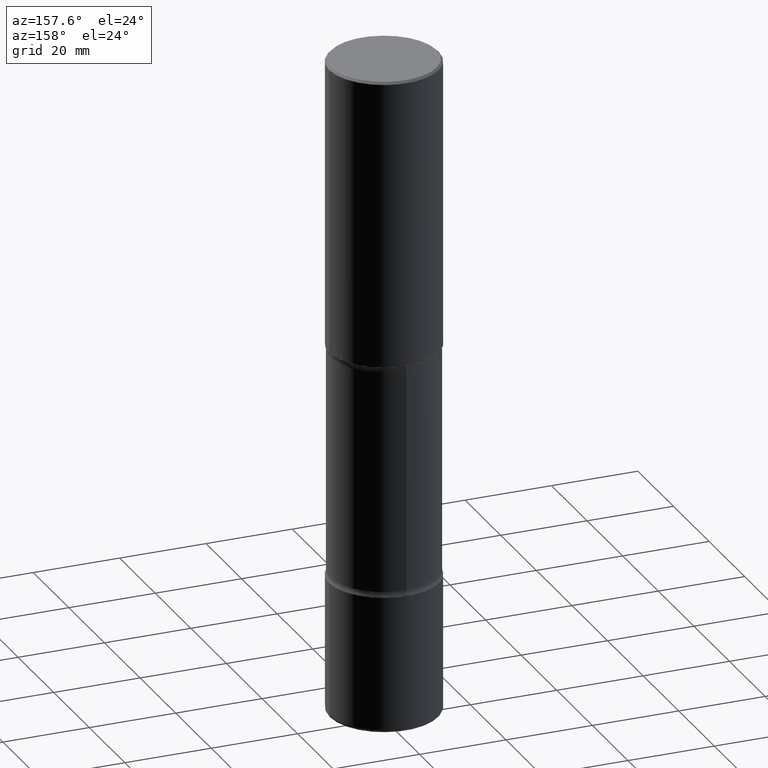
[diagram: clean part render]
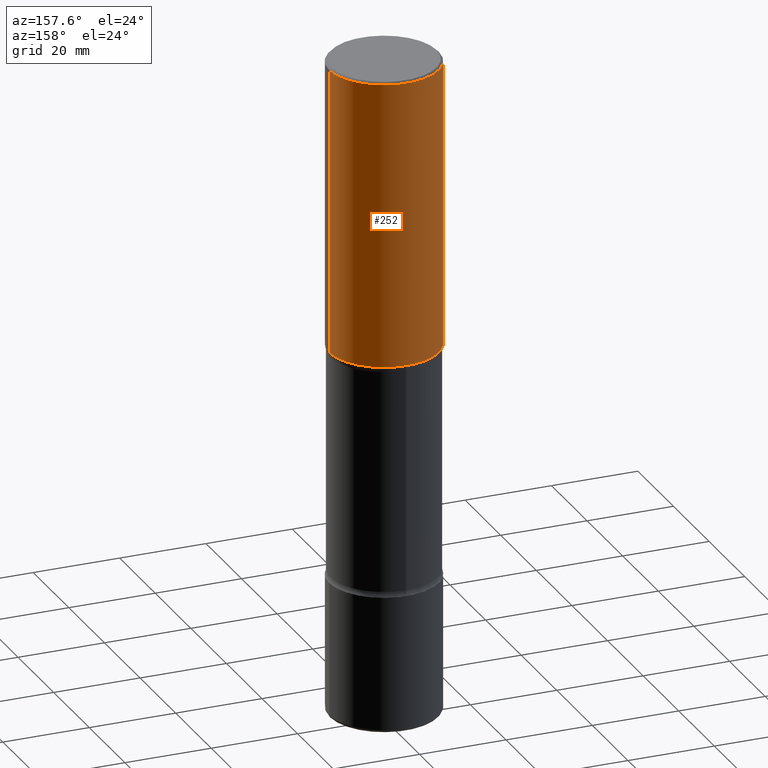
[diagram: same view with one face highlighted and labeled with its STEP entity id]
A machine part, auxiliary view. The second image highlights one B-rep face of the part: STEP entity #252.
In plain terms, the highlighted cylindrical surface (partial cylindrical patch) has radius 12.7 mm, axis along (-0, 0, 1).
Its self-contained STEP definition (entity closure, byte-faithful):
#10 = CARTESIAN_POINT ( 'NONE',  ( -0.5000000000000006661, 3.552713678800505663E-15, -2.459467545127455974E-29 ) ) ;
#20 = CARTESIAN_POINT ( 'NONE',  ( -0.5000000000000005551, 3.421651712066274396E-15, -0.02000000000000000042 ) ) ;
#55 = DIRECTION ( 'NONE',  ( -2.445468806185136597E-29, 3.491481338843145583E-15, 1.000000000000000000 ) ) ;
#65 = DIRECTION ( 'NONE',  ( -2.445468806185136877E-29, 3.491481338843145188E-15, 1.000000000000000000 ) ) ;
#73 = VECTOR ( 'NONE', #328, 39.37007874015748143 ) ;
#79 = AXIS2_PLACEMENT_3D ( 'NONE', #256, #432, #483 ) ;
#105 = EDGE_CURVE ( 'NONE', #178, #482, #552, .T. ) ;
#123 = ORIENTED_EDGE ( 'NONE', *, *, #385, .F. ) ;
#145 = EDGE_CURVE ( 'NONE', #482, #442, #190, .T. ) ;
#147 = LINE ( 'NONE', #231, #73 ) ;
#178 = VERTEX_POINT ( 'NONE', #420 ) ;
#190 = LINE ( 'NONE', #10, #313 ) ;
#206 = EDGE_CURVE ( 'NONE', #402, #442, #250, .T. ) ;
#217 = ORIENTED_EDGE ( 'NONE', *, *, #145, .T. ) ;
#229 = DIRECTION ( 'NONE',  ( 1.000000000000000000, -6.982962677686266711E-15, 4.876176775795935793E-29 ) ) ;
#231 = CARTESIAN_POINT ( 'NONE',  ( 0.5000000000000006661, -3.491481338843138088E-15, 2.438088387897971260E-29 ) ) ;
#250 = CIRCLE ( 'NONE', #445, 0.5000000000000005551 ) ;
#252 = ADVANCED_FACE ( 'NONE', ( #369 ), #289, .T. ) ;
#256 = CARTESIAN_POINT ( 'NONE',  ( 6.419355616235984688E-29, -9.165138514463258190E-15, -2.625000000000000444 ) ) ;
#279 = CARTESIAN_POINT ( 'NONE',  ( 0.000000000000000000, 0.000000000000000000, 0.000000000000000000 ) ) ;
#289 = CYLINDRICAL_SURFACE ( 'NONE', #470, 0.5000000000000006661 ) ;
#313 = VECTOR ( 'NONE', #65, 39.37007874015748143 ) ;
#328 = DIRECTION ( 'NONE',  ( -2.445468806185136877E-29, 3.491481338843145188E-15, 1.000000000000000000 ) ) ;
#369 = FACE_OUTER_BOUND ( 'NONE', #490, .T. ) ;
#385 = EDGE_CURVE ( 'NONE', #178, #402, #147, .T. ) ;
#388 = CARTESIAN_POINT ( 'NONE',  ( 4.890937612370273159E-31, -6.982962677686291609E-17, -0.02000000000000000042 ) ) ;
#402 = VERTEX_POINT ( 'NONE', #463 ) ;
#420 = CARTESIAN_POINT ( 'NONE',  ( 0.5000000000000007772, -1.265661985330639786E-14, -2.625000000000000444 ) ) ;
#424 = ORIENTED_EDGE ( 'NONE', *, *, #206, .F. ) ;
#432 = DIRECTION ( 'NONE',  ( -2.445468806185136597E-29, 3.491481338843145583E-15, 1.000000000000000000 ) ) ;
#442 = VERTEX_POINT ( 'NONE', #20 ) ;
#445 = AXIS2_PLACEMENT_3D ( 'NONE', #388, #517, #506 ) ;
#463 = CARTESIAN_POINT ( 'NONE',  ( 0.5000000000000005551, -3.500078625662632235E-15, -0.02000000000000000042 ) ) ;
#470 = AXIS2_PLACEMENT_3D ( 'NONE', #279, #55, #229 ) ;
#478 = ORIENTED_EDGE ( 'NONE', *, *, #105, .T. ) ;
#481 = CARTESIAN_POINT ( 'NONE',  ( -0.5000000000000007772, -1.064770391819553504E-15, -2.625000000000000444 ) ) ;
#482 = VERTEX_POINT ( 'NONE', #481 ) ;
#483 = DIRECTION ( 'NONE',  ( 1.000000000000000000, -6.982962677686267499E-15, 0.000000000000000000 ) ) ;
#490 = EDGE_LOOP ( 'NONE', ( #478, #217, #424, #123 ) ) ;
#506 = DIRECTION ( 'NONE',  ( 1.000000000000000000, -6.982962677686266711E-15, 0.000000000000000000 ) ) ;
#517 = DIRECTION ( 'NONE',  ( -2.445468806185136597E-29, 3.491481338843145583E-15, 1.000000000000000000 ) ) ;
#552 = CIRCLE ( 'NONE', #79, 0.5000000000000007772 ) ;